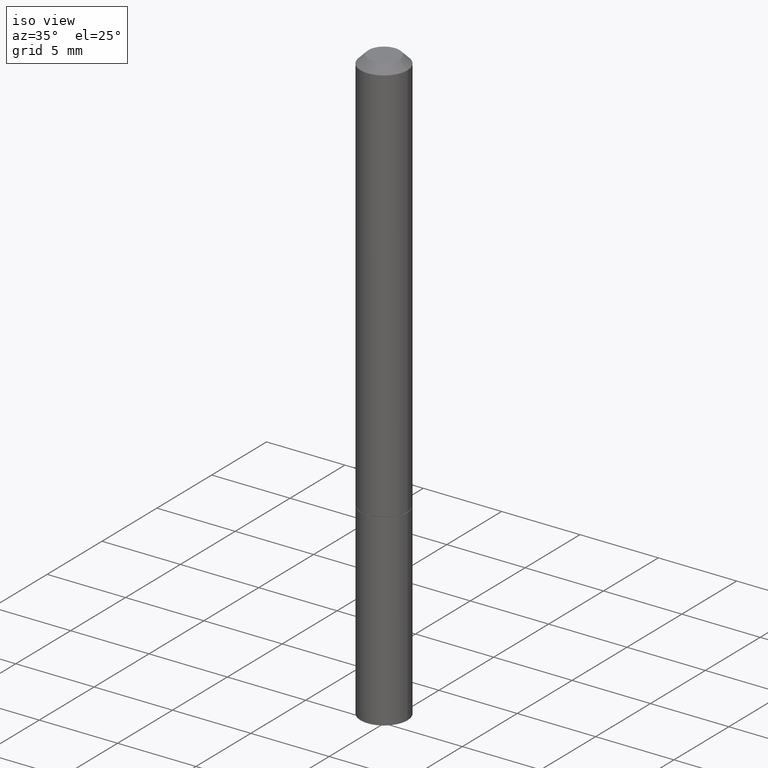
[diagram: clean part render]
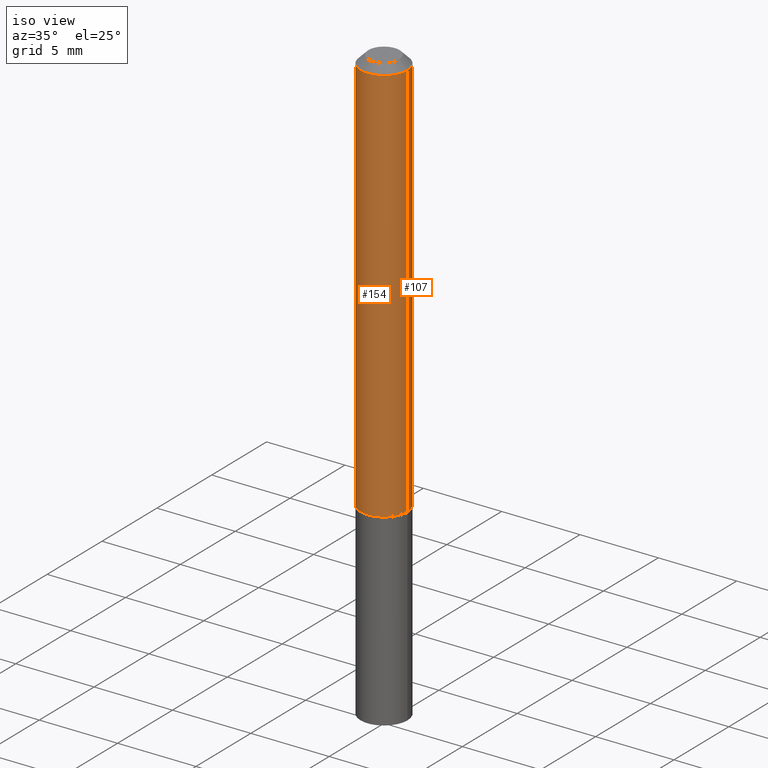
[diagram: same view with one multi-face feature highlighted, each face labeled with its STEP entity id]
A machine part, iso view. The highlighted faces form ONE feature: a constant-radius fillet chain: 2 tangent blend faces with common blend radius 1.4999 mm. The faces share edges in the B-rep.
Their STEP definitions:
[1] entity #154 (Cylinder):
#11 = CIRCLE ( 'NONE', #194, 0.05904999999999994975 ) ;
#37 = DIRECTION ( 'NONE',  ( -2.445468806185136597E-29, 3.491481338843145583E-15, 1.000000000000000000 ) ) ;
#39 = CARTESIAN_POINT ( 'NONE',  ( 2.500980948085538461E-29, -3.570737965234883817E-15, -1.022699999999999720 ) ) ;
#42 = DIRECTION ( 'NONE',  ( -2.445468806185136597E-29, 3.491481338843145583E-15, 1.000000000000000000 ) ) ;
#46 = VECTOR ( 'NONE', #227, 39.37007874015748143 ) ;
#60 = DIRECTION ( 'NONE',  ( -2.445468806185136597E-29, 3.491481338843145583E-15, 1.000000000000000000 ) ) ;
#67 = LINE ( 'NONE', #151, #46 ) ;
#71 = ORIENTED_EDGE ( 'NONE', *, *, #278, .T. ) ;
#81 = ORIENTED_EDGE ( 'NONE', *, *, #223, .F. ) ;
#87 = DIRECTION ( 'NONE',  ( 1.000000000000000000, -6.982962677686266711E-15, 4.876176775795935232E-29 ) ) ;
#94 = DIRECTION ( 'NONE',  ( -2.445468806185136877E-29, 3.491481338843145188E-15, 1.000000000000000000 ) ) ;
#108 = VERTEX_POINT ( 'NONE', #115 ) ;
#114 = FACE_OUTER_BOUND ( 'NONE', #185, .T. ) ;
#115 = CARTESIAN_POINT ( 'NONE',  ( 0.05904999999999981097, -4.749420335452707859E-16, -0.02000000000000007674 ) ) ;
#119 = DIRECTION ( 'NONE',  ( 1.000000000000000000, -6.982962677686265922E-15, 0.000000000000000000 ) ) ;
#120 = CARTESIAN_POINT ( 'NONE',  ( -0.05904999999999988036, 4.195754854663383097E-16, -2.904631170795515936E-30 ) ) ;
#133 = AXIS2_PLACEMENT_3D ( 'NONE', #287, #37, #119 ) ;
#145 = VECTOR ( 'NONE', #94, 39.37007874015748143 ) ;
#151 = CARTESIAN_POINT ( 'NONE',  ( 0.05904999999999988036, -4.123439461173731945E-16, 2.879382386107493914E-30 ) ) ;
#154 = ADVANCED_FACE ( 'NONE', ( #114 ), #222, .T. ) ;
#157 = ORIENTED_EDGE ( 'NONE', *, *, #341, .T. ) ;
#175 = LINE ( 'NONE', #120, #145 ) ;
#185 = EDGE_LOOP ( 'NONE', ( #354, #71, #157, #81 ) ) ;
#186 = VERTEX_POINT ( 'NONE', #337 ) ;
#194 = AXIS2_PLACEMENT_3D ( 'NONE', #39, #42, #201 ) ;
#201 = DIRECTION ( 'NONE',  ( 1.000000000000000000, -6.982962677686270655E-15, 0.000000000000000000 ) ) ;
#222 = CYLINDRICAL_SURFACE ( 'NONE', #305, 0.05904999999999988036 ) ;
#223 = EDGE_CURVE ( 'NONE', #333, #108, #265, .T. ) ;
#227 = DIRECTION ( 'NONE',  ( -2.445468806185136877E-29, 3.491481338843145188E-15, 1.000000000000000000 ) ) ;
#231 = CARTESIAN_POINT ( 'NONE',  ( 0.05904999999999994975, -3.983081911352257948E-15, -1.022699999999999720 ) ) ;
#238 = EDGE_CURVE ( 'NONE', #186, #333, #175, .T. ) ;
#265 = CIRCLE ( 'NONE', #133, 0.05904999999999981097 ) ;
#278 = EDGE_CURVE ( 'NONE', #186, #299, #11, .T. ) ;
#287 = CARTESIAN_POINT ( 'NONE',  ( 4.890937612370292426E-31, -6.982962677686317493E-17, -0.02000000000000007674 ) ) ;
#299 = VERTEX_POINT ( 'NONE', #231 ) ;
#305 = AXIS2_PLACEMENT_3D ( 'NONE', #314, #60, #87 ) ;
#314 = CARTESIAN_POINT ( 'NONE',  ( 0.000000000000000000, 0.000000000000000000, 0.000000000000000000 ) ) ;
#319 = CARTESIAN_POINT ( 'NONE',  ( -0.05904999999999981097, 3.425143193405095019E-16, -0.02000000000000007674 ) ) ;
#333 = VERTEX_POINT ( 'NONE', #319 ) ;
#337 = CARTESIAN_POINT ( 'NONE',  ( -0.05904999999999994975, -1.400708310539532881E-15, -1.022699999999999720 ) ) ;
#341 = EDGE_CURVE ( 'NONE', #299, #108, #67, .T. ) ;
#354 = ORIENTED_EDGE ( 'NONE', *, *, #238, .F. ) ;
[2] entity #107 (Cylinder):
#5 = AXIS2_PLACEMENT_3D ( 'NONE', #339, #89, #310 ) ;
#26 = ORIENTED_EDGE ( 'NONE', *, *, #238, .T. ) ;
#27 = ORIENTED_EDGE ( 'NONE', *, *, #73, .T. ) ;
#33 = CARTESIAN_POINT ( 'NONE',  ( 0.000000000000000000, 0.000000000000000000, 0.000000000000000000 ) ) ;
#46 = VECTOR ( 'NONE', #227, 39.37007874015748143 ) ;
#51 = EDGE_LOOP ( 'NONE', ( #27, #26, #334, #214 ) ) ;
#54 = AXIS2_PLACEMENT_3D ( 'NONE', #33, #279, #285 ) ;
#64 = DIRECTION ( 'NONE',  ( -2.445468806185136597E-29, 3.491481338843145583E-15, 1.000000000000000000 ) ) ;
#67 = LINE ( 'NONE', #151, #46 ) ;
#73 = EDGE_CURVE ( 'NONE', #299, #186, #330, .T. ) ;
#89 = DIRECTION ( 'NONE',  ( -2.445468806185136597E-29, 3.491481338843145583E-15, 1.000000000000000000 ) ) ;
#94 = DIRECTION ( 'NONE',  ( -2.445468806185136877E-29, 3.491481338843145188E-15, 1.000000000000000000 ) ) ;
#107 = ADVANCED_FACE ( 'NONE', ( #163 ), #343, .T. ) ;
#108 = VERTEX_POINT ( 'NONE', #115 ) ;
#115 = CARTESIAN_POINT ( 'NONE',  ( 0.05904999999999981097, -4.749420335452707859E-16, -0.02000000000000007674 ) ) ;
#120 = CARTESIAN_POINT ( 'NONE',  ( -0.05904999999999988036, 4.195754854663383097E-16, -2.904631170795515936E-30 ) ) ;
#145 = VECTOR ( 'NONE', #94, 39.37007874015748143 ) ;
#151 = CARTESIAN_POINT ( 'NONE',  ( 0.05904999999999988036, -4.123439461173731945E-16, 2.879382386107493914E-30 ) ) ;
#163 = FACE_OUTER_BOUND ( 'NONE', #51, .T. ) ;
#173 = DIRECTION ( 'NONE',  ( 1.000000000000000000, -6.982962677686265922E-15, 0.000000000000000000 ) ) ;
#175 = LINE ( 'NONE', #120, #145 ) ;
#186 = VERTEX_POINT ( 'NONE', #337 ) ;
#203 = EDGE_CURVE ( 'NONE', #108, #333, #307, .T. ) ;
#214 = ORIENTED_EDGE ( 'NONE', *, *, #341, .F. ) ;
#227 = DIRECTION ( 'NONE',  ( -2.445468806185136877E-29, 3.491481338843145188E-15, 1.000000000000000000 ) ) ;
#231 = CARTESIAN_POINT ( 'NONE',  ( 0.05904999999999994975, -3.983081911352257948E-15, -1.022699999999999720 ) ) ;
#232 = CARTESIAN_POINT ( 'NONE',  ( 4.890937612370292426E-31, -6.982962677686317493E-17, -0.02000000000000007674 ) ) ;
#238 = EDGE_CURVE ( 'NONE', #186, #333, #175, .T. ) ;
#279 = DIRECTION ( 'NONE',  ( -2.445468806185136597E-29, 3.491481338843145583E-15, 1.000000000000000000 ) ) ;
#285 = DIRECTION ( 'NONE',  ( 1.000000000000000000, -6.982962677686266711E-15, 4.876176775795935232E-29 ) ) ;
#299 = VERTEX_POINT ( 'NONE', #231 ) ;
#307 = CIRCLE ( 'NONE', #352, 0.05904999999999981097 ) ;
#310 = DIRECTION ( 'NONE',  ( 1.000000000000000000, -6.982962677686270655E-15, 0.000000000000000000 ) ) ;
#319 = CARTESIAN_POINT ( 'NONE',  ( -0.05904999999999981097, 3.425143193405095019E-16, -0.02000000000000007674 ) ) ;
#330 = CIRCLE ( 'NONE', #5, 0.05904999999999994975 ) ;
#333 = VERTEX_POINT ( 'NONE', #319 ) ;
#334 = ORIENTED_EDGE ( 'NONE', *, *, #203, .F. ) ;
#337 = CARTESIAN_POINT ( 'NONE',  ( -0.05904999999999994975, -1.400708310539532881E-15, -1.022699999999999720 ) ) ;
#339 = CARTESIAN_POINT ( 'NONE',  ( 2.500980948085538461E-29, -3.570737965234883817E-15, -1.022699999999999720 ) ) ;
#341 = EDGE_CURVE ( 'NONE', #299, #108, #67, .T. ) ;
#343 = CYLINDRICAL_SURFACE ( 'NONE', #54, 0.05904999999999988036 ) ;
#352 = AXIS2_PLACEMENT_3D ( 'NONE', #232, #64, #173 ) ;